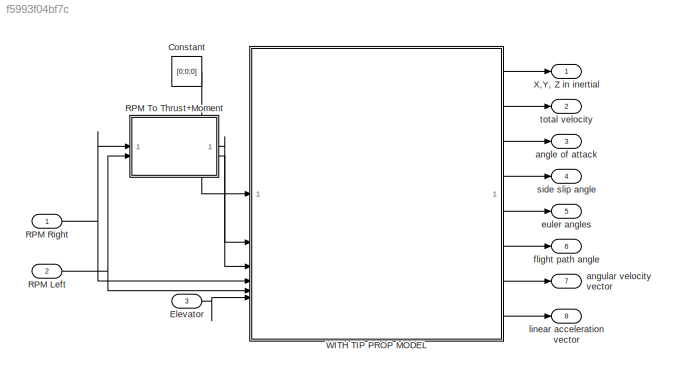
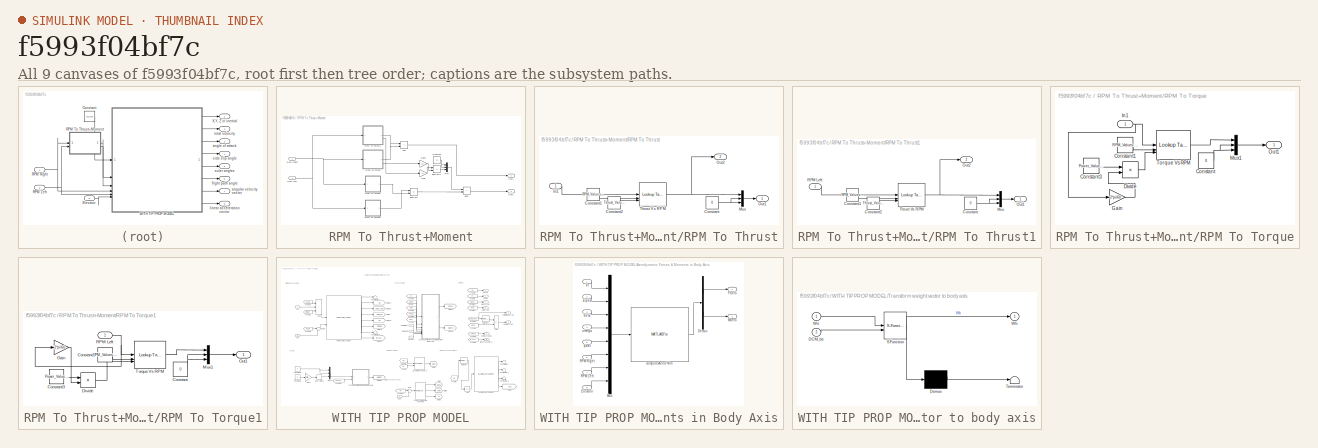
[diagram: thumbnail index - all 9 canvases of the model, root first then tree order]
MODEL slx_f5993f04bf7c
KIND model
CONFIG AbsTol = auto
CONFIG EnableMultiTasking = off
CONFIG FixedStep = auto
CONFIG MaxStep = auto
CONFIG MinStep = auto
CONFIG RelTol = 1e-3
CONFIG SampleTimeConstraint = Unconstrained
CONFIG SolverName = VariableStepAuto
CONFIG StartTime = 0.0
CONFIG StopTime = 100.0
BLOCK [Constant] Constant
  Value = [0;0;0]
BLOCK [Inport] Elevator
  Port = 3
BLOCK [Inport] RPM Left
  Port = 2
BLOCK [Inport] RPM Right
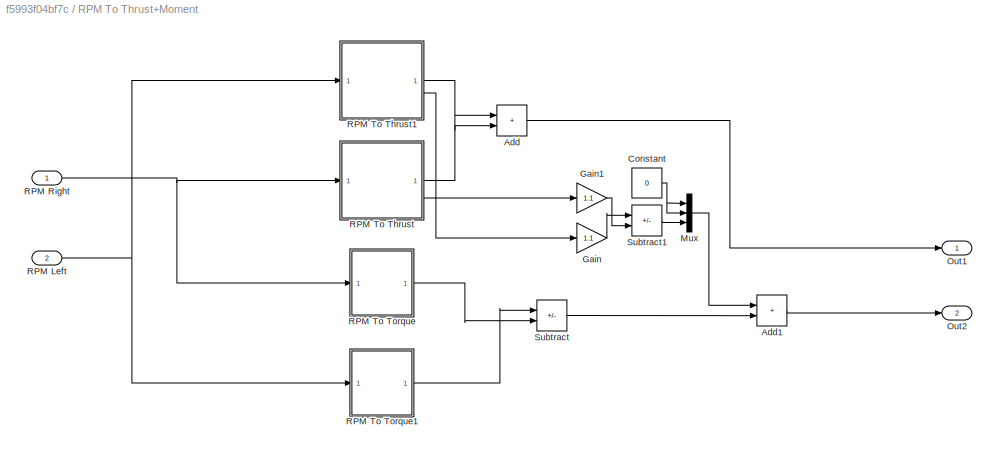
BLOCK [SubSystem] RPM To Thrust+Moment
BLOCK [Sum] RPM To Thrust+Moment/Add
  IconShape = rectangular
BLOCK [Sum] RPM To Thrust+Moment/Add1
  IconShape = rectangular
BLOCK [Constant] RPM To Thrust+Moment/Constant
  Value = 0
BLOCK [Gain] RPM To Thrust+Moment/Gain
  Gain = 1.1
BLOCK [Gain] RPM To Thrust+Moment/Gain1
  Gain = 1.1
BLOCK [Mux] RPM To Thrust+Moment/Mux
  DisplayOption = bar
  Inputs = 3
BLOCK [Outport] RPM To Thrust+Moment/Out1
BLOCK [Outport] RPM To Thrust+Moment/Out2
  Port = 2
BLOCK [Inport] RPM To Thrust+Moment/RPM Left
  Port = 2
BLOCK [Inport] RPM To Thrust+Moment/RPM Right
BLOCK [SubSystem] RPM To Thrust+Moment/RPM To Thrust
BLOCK [Constant] RPM To Thrust+Moment/RPM To Thrust/Constant
  Value = 0
BLOCK [Constant] RPM To Thrust+Moment/RPM To Thrust/Constant1
  Value = RPM_Values.RPM_Values
BLOCK [Constant] RPM To Thrust+Moment/RPM To Thrust/Constant2
  Value = Thrust_Values.Thrust_Values*2.25
BLOCK [Inport] RPM To Thrust+Moment/RPM To Thrust/In1
BLOCK [Mux] RPM To Thrust+Moment/RPM To Thrust/Mux
  DisplayOption = bar
  Inputs = 3
BLOCK [Outport] RPM To Thrust+Moment/RPM To Thrust/Out1
BLOCK [Outport] RPM To Thrust+Moment/RPM To Thrust/Out2
  Port = 2
BLOCK [Reference] RPM To Thrust+Moment/RPM To Thrust/Thrust Vs RPM  REF=simulink/Lookup
Tables/Lookup
Table
Dynamic
  SourceBlock = simulink/Lookup\nTables/Lookup\nTable\nDynamic
  SourceType = Lookup Table Dynamic
BLOCK [SubSystem] RPM To Thrust+Moment/RPM To Thrust1
BLOCK [Constant] RPM To Thrust+Moment/RPM To Thrust1/Constant
  Value = 0
BLOCK [Constant] RPM To Thrust+Moment/RPM To Thrust1/Constant1
  Value = RPM_Values.RPM_Values
BLOCK [Constant] RPM To Thrust+Moment/RPM To Thrust1/Constant2
  Value = Thrust_Values.Thrust_Values*2.25
BLOCK [Mux] RPM To Thrust+Moment/RPM To Thrust1/Mux
  DisplayOption = bar
  Inputs = 3
BLOCK [Outport] RPM To Thrust+Moment/RPM To Thrust1/Out1
BLOCK [Outport] RPM To Thrust+Moment/RPM To Thrust1/Out2
  Port = 2
BLOCK [Inport] RPM To Thrust+Moment/RPM To Thrust1/RPM Left
BLOCK [Reference] RPM To Thrust+Moment/RPM To Thrust1/Thrust Vs RPM  REF=simulink/Lookup
Tables/Lookup
Table
Dynamic
  SourceBlock = simulink/Lookup\nTables/Lookup\nTable\nDynamic
  SourceType = Lookup Table Dynamic
BLOCK [SubSystem] RPM To Thrust+Moment/RPM To Torque
BLOCK [Constant] RPM To Thrust+Moment/RPM To Torque/Constant
  Value = 0
BLOCK [Constant] RPM To Thrust+Moment/RPM To Torque/Constant1
  Value = RPM_Values.RPM_Values
BLOCK [Constant] RPM To Thrust+Moment/RPM To Torque/Constant3
  Value = Power_Values.Power_Values*1.5*1.5
BLOCK [Product] RPM To Thrust+Moment/RPM To Torque/Divide
  Inputs = */
BLOCK [Gain] RPM To Thrust+Moment/RPM To Torque/Gain
  Gain = 2*pi/60
BLOCK [Inport] RPM To Thrust+Moment/RPM To Torque/In1
BLOCK [Mux] RPM To Thrust+Moment/RPM To Torque/Mux1
  DisplayOption = bar
  Inputs = 3
BLOCK [Outport] RPM To Thrust+Moment/RPM To Torque/Out1
BLOCK [Reference] RPM To Thrust+Moment/RPM To Torque/Torque Vs RPM  REF=simulink/Lookup
Tables/Lookup
Table
Dynamic
  SourceBlock = simulink/Lookup\nTables/Lookup\nTable\nDynamic
  SourceType = Lookup Table Dynamic
BLOCK [SubSystem] RPM To Thrust+Moment/RPM To Torque1
BLOCK [Constant] RPM To Thrust+Moment/RPM To Torque1/Constant
  Value = 0
BLOCK [Constant] RPM To Thrust+Moment/RPM To Torque1/Constant1
  Value = RPM_Values.RPM_Values
BLOCK [Constant] RPM To Thrust+Moment/RPM To Torque1/Constant3
  Value = Power_Values.Power_Values*1.5*1.5
BLOCK [Product] RPM To Thrust+Moment/RPM To Torque1/Divide
  Inputs = */
BLOCK [Gain] RPM To Thrust+Moment/RPM To Torque1/Gain
  Gain = 2*pi/60
BLOCK [Mux] RPM To Thrust+Moment/RPM To Torque1/Mux1
  DisplayOption = bar
  Inputs = 3
BLOCK [Outport] RPM To Thrust+Moment/RPM To Torque1/Out1
BLOCK [Inport] RPM To Thrust+Moment/RPM To Torque1/RPM Left
BLOCK [Reference] RPM To Thrust+Moment/RPM To Torque1/Torque Vs RPM  REF=simulink/Lookup
Tables/Lookup
Table
Dynamic
  SourceBlock = simulink/Lookup\nTables/Lookup\nTable\nDynamic
  SourceType = Lookup Table Dynamic
BLOCK [Sum] RPM To Thrust+Moment/Subtract
  IconShape = rectangular
  Inputs = +-
BLOCK [Sum] RPM To Thrust+Moment/Subtract1
  IconShape = rectangular
  Inputs = +-
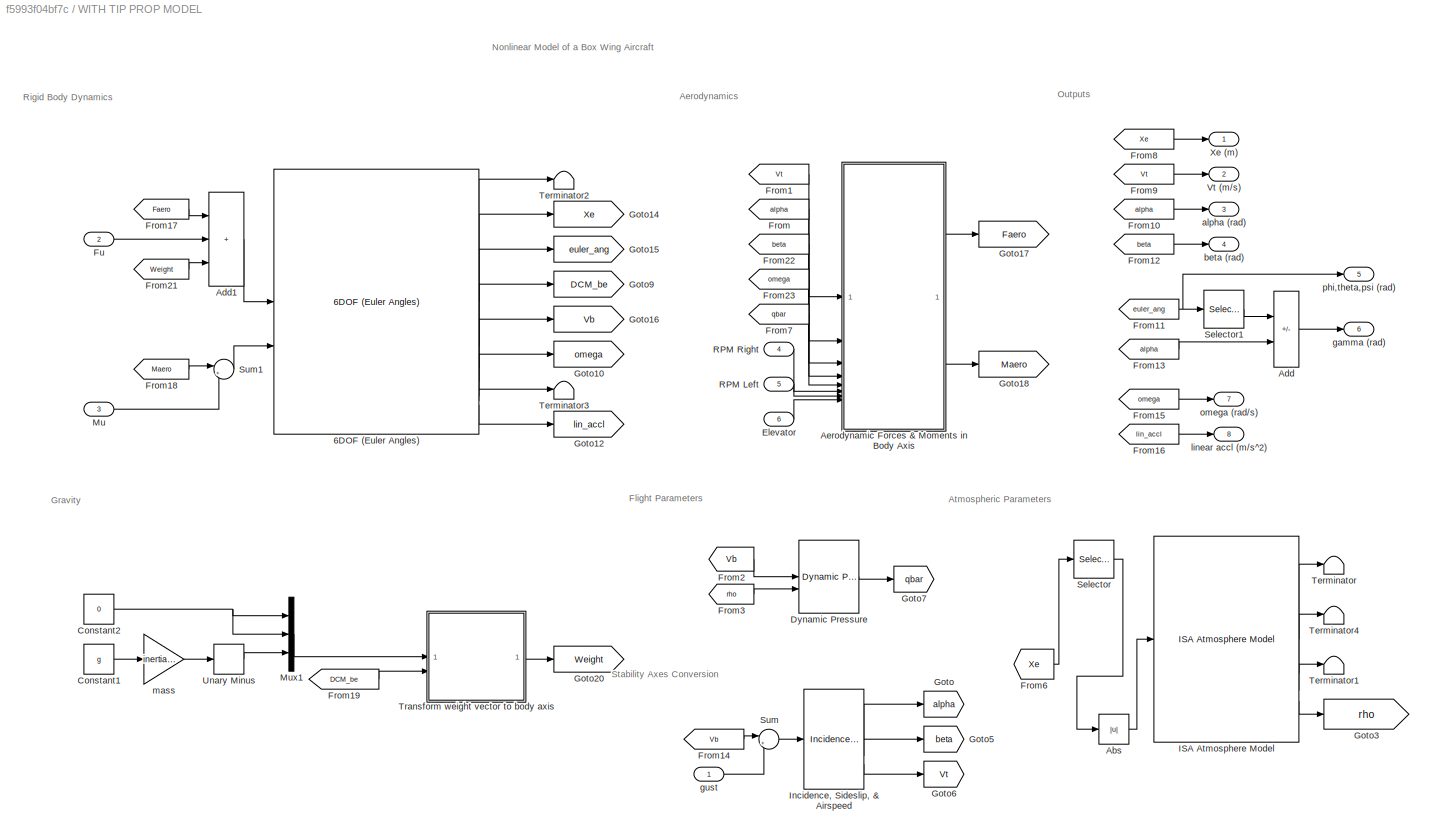
BLOCK [SubSystem] WITH TIP PROP MODEL
BLOCK [Reference] WITH TIP PROP MODEL/6DOF (Euler Angles)  REF=shared6dof/6DOF (Euler Angles)
  SourceBlock = shared6dof/6DOF (Euler Angles)
  SourceType = 6DOF EoM (Body Axis)
BLOCK [Abs] WITH TIP PROP MODEL/Abs
  SaturateOnIntegerOverflow = off
BLOCK [Sum] WITH TIP PROP MODEL/Add
  IconShape = rectangular
  Inputs = +-
BLOCK [Sum] WITH TIP PROP MODEL/Add1
  IconShape = rectangular
  Inputs = +++
BLOCK [SubSystem] WITH TIP PROP MODEL/Aerodynamic Forces & Moments in Body Axis
BLOCK [Demux] WITH TIP PROP MODEL/Aerodynamic Forces & Moments in Body Axis/Demux
  Outputs = 2
BLOCK [Inport] WITH TIP PROP MODEL/Aerodynamic Forces & Moments in Body Axis/Elevator 
  Port = 8
BLOCK [Outport] WITH TIP PROP MODEL/Aerodynamic Forces & Moments in Body Axis/Faero
  PortDimensions = 3
BLOCK [Outport] WITH TIP PROP MODEL/Aerodynamic Forces & Moments in Body Axis/Maero
  Port = 2
  PortDimensions = 3
BLOCK [Mux] WITH TIP PROP MODEL/Aerodynamic Forces & Moments in Body Axis/Mux
  DisplayOption = bar
  Inputs = 8
BLOCK [Inport] WITH TIP PROP MODEL/Aerodynamic Forces & Moments in Body Axis/RPM Left
  Port = 7
BLOCK [Inport] WITH TIP PROP MODEL/Aerodynamic Forces & Moments in Body Axis/RPM Right
  Port = 6
BLOCK [Inport] WITH TIP PROP MODEL/Aerodynamic Forces & Moments in Body Axis/Vt
BLOCK [Inport] WITH TIP PROP MODEL/Aerodynamic Forces & Moments in Body Axis/alpha
  Port = 2
BLOCK [Inport] WITH TIP PROP MODEL/Aerodynamic Forces & Moments in Body Axis/beta
  Port = 3
BLOCK [MATLABFcn] WITH TIP PROP MODEL/Aerodynamic Forces & Moments in Body Axis/computeAeroFM.m
  MATLABFcn = computeAeroFM
  OutputDimensions = 6
  OutputSignalType = real
BLOCK [Inport] WITH TIP PROP MODEL/Aerodynamic Forces & Moments in Body Axis/omega
  Port = 4
BLOCK [Inport] WITH TIP PROP MODEL/Aerodynamic Forces & Moments in Body Axis/qbar
  Port = 5
BLOCK [Constant] WITH TIP PROP MODEL/Constant1
  Value = g
BLOCK [Constant] WITH TIP PROP MODEL/Constant2
  Value = 0
BLOCK [Reference] WITH TIP PROP MODEL/Dynamic Pressure  REF=aerolibasang/Dynamic Pressure
  SourceBlock = aerolibasang/Dynamic Pressure
  SourceType = Dynamic Pressure
BLOCK [Inport] WITH TIP PROP MODEL/Elevator 
  Port = 6
BLOCK [From] WITH TIP PROP MODEL/From
  GotoTag = alpha
BLOCK [From] WITH TIP PROP MODEL/From1
  GotoTag = Vt
BLOCK [From] WITH TIP PROP MODEL/From10
  GotoTag = alpha
BLOCK [From] WITH TIP PROP MODEL/From11
  GotoTag = euler_ang
BLOCK [From] WITH TIP PROP MODEL/From12
  GotoTag = beta
BLOCK [From] WITH TIP PROP MODEL/From13
  GotoTag = alpha
BLOCK [From] WITH TIP PROP MODEL/From14
  GotoTag = Vb
BLOCK [From] WITH TIP PROP MODEL/From15
  GotoTag = omega
BLOCK [From] WITH TIP PROP MODEL/From16
  GotoTag = lin_accl
BLOCK [From] WITH TIP PROP MODEL/From17
  GotoTag = Faero
BLOCK [From] WITH TIP PROP MODEL/From18
  GotoTag = Maero
BLOCK [From] WITH TIP PROP MODEL/From19
  GotoTag = DCM_be
BLOCK [From] WITH TIP PROP MODEL/From2
  GotoTag = Vb
BLOCK [From] WITH TIP PROP MODEL/From21
  GotoTag = Weight
BLOCK [From] WITH TIP PROP MODEL/From22
  GotoTag = beta
BLOCK [From] WITH TIP PROP MODEL/From23
  GotoTag = omega
BLOCK [From] WITH TIP PROP MODEL/From3
  GotoTag = rho
BLOCK [From] WITH TIP PROP MODEL/From6
  GotoTag = Xe
BLOCK [From] WITH TIP PROP MODEL/From7
  GotoTag = qbar
BLOCK [From] WITH TIP PROP MODEL/From8
  GotoTag = Xe
BLOCK [From] WITH TIP PROP MODEL/From9
  GotoTag = Vt
BLOCK [Inport] WITH TIP PROP MODEL/Fu
  Port = 2
  PortDimensions = 3
BLOCK [Goto] WITH TIP PROP MODEL/Goto
  GotoTag = alpha
BLOCK [Goto] WITH TIP PROP MODEL/Goto10
  GotoTag = omega
BLOCK [Goto] WITH TIP PROP MODEL/Goto12
  GotoTag = lin_accl
BLOCK [Goto] WITH TIP PROP MODEL/Goto14
  GotoTag = Xe
BLOCK [Goto] WITH TIP PROP MODEL/Goto15
  GotoTag = euler_ang
BLOCK [Goto] WITH TIP PROP MODEL/Goto16
  GotoTag = Vb
BLOCK [Goto] WITH TIP PROP MODEL/Goto17
  GotoTag = Faero
BLOCK [Goto] WITH TIP PROP MODEL/Goto18
  GotoTag = Maero
BLOCK [Goto] WITH TIP PROP MODEL/Goto20
  GotoTag = Weight
BLOCK [Goto] WITH TIP PROP MODEL/Goto3
  GotoTag = rho
BLOCK [Goto] WITH TIP PROP MODEL/Goto5
  GotoTag = beta
BLOCK [Goto] WITH TIP PROP MODEL/Goto6
  GotoTag = Vt
BLOCK [Goto] WITH TIP PROP MODEL/Goto7
  GotoTag = qbar
BLOCK [Goto] WITH TIP PROP MODEL/Goto9
  GotoTag = DCM_be
BLOCK [Reference] WITH TIP PROP MODEL/ISA Atmosphere Model  REF=aerolibatmos2/ISA Atmosphere Model
  SourceBlock = aerolibatmos2/ISA Atmosphere Model
  SourceType = International Standard Atmosphere Model
BLOCK [Reference] WITH TIP PROP MODEL/Incidence, Sideslip, & Airspeed  REF=aerolibasang/Incidence, Sideslip,
& Airspeed
  SourceBlock = aerolibasang/Incidence, Sideslip,\n& Airspeed
  SourceType = Incidence,Sideslip,&Airspeed
BLOCK [Inport] WITH TIP PROP MODEL/Mu
  Port = 3
  PortDimensions = 3
BLOCK [Mux] WITH TIP PROP MODEL/Mux1
  DisplayOption = bar
  Inputs = 3
BLOCK [Inport] WITH TIP PROP MODEL/RPM Left
  Port = 5
BLOCK [Inport] WITH TIP PROP MODEL/RPM Right
  Port = 4
BLOCK [Selector] WITH TIP PROP MODEL/Selector
  IndexOptions = Index vector (dialog)
  Indices = 3
  InputPortWidth = 3
  OutputSizes = 1
BLOCK [Selector] WITH TIP PROP MODEL/Selector1
  IndexOptions = Index vector (dialog)
  Indices = 2
  InputPortWidth = 3
  OutputSizes = 1
BLOCK [Sum] WITH TIP PROP MODEL/Sum
  Inputs = |++
BLOCK [Sum] WITH TIP PROP MODEL/Sum1
  Inputs = |++
BLOCK [Terminator] WITH TIP PROP MODEL/Terminator
BLOCK [Terminator] WITH TIP PROP MODEL/Terminator1
BLOCK [Terminator] WITH TIP PROP MODEL/Terminator2
BLOCK [Terminator] WITH TIP PROP MODEL/Terminator3
BLOCK [Terminator] WITH TIP PROP MODEL/Terminator4
BLOCK [SubSystem] WITH TIP PROP MODEL/Transform weight vector to body axis
  ErrorFcn = Stateflow.Translate.translate
  PermitHierarchicalResolution = ExplicitOnly
  SFBlockType = MATLAB Function
  TreatAsAtomicUnit = on
BLOCK [Demux] WITH TIP PROP MODEL/Transform weight vector to body axis/ Demux 
  Outputs = 1
BLOCK [S-Function] WITH TIP PROP MODEL/Transform weight vector to body axis/ SFunction 
  EnableBusSupport = on
  FunctionName = sf_sfun
  PortCounts = [2 2]
  SFcnIsStateOwnerBlock = off
  SFunctionDeploymentMode = off
  Tag = Stateflow S-Function 1
BLOCK [Terminator] WITH TIP PROP MODEL/Transform weight vector to body axis/ Terminator 
BLOCK [Inport] WITH TIP PROP MODEL/Transform weight vector to body axis/DCM_be
  Port = 2
BLOCK [Outport] WITH TIP PROP MODEL/Transform weight vector to body axis/Wb
BLOCK [Inport] WITH TIP PROP MODEL/Transform weight vector to body axis/We
BLOCK [UnaryMinus] WITH TIP PROP MODEL/Unary Minus
BLOCK [Outport] WITH TIP PROP MODEL/Vt (m//s)
  Port = 2
BLOCK [Outport] WITH TIP PROP MODEL/Xe (m)
BLOCK [Outport] WITH TIP PROP MODEL/alpha (rad)
  Port = 3
BLOCK [Outport] WITH TIP PROP MODEL/beta (rad)
  Port = 4
BLOCK [Outport] WITH TIP PROP MODEL/gamma (rad)
  Port = 6
BLOCK [Inport] WITH TIP PROP MODEL/gust
  PortDimensions = 3
BLOCK [Outport] WITH TIP PROP MODEL/linear accl (m//s^2)
  Port = 8
BLOCK [Gain] WITH TIP PROP MODEL/mass
  Gain = inertiaGeom.mass
BLOCK [Outport] WITH TIP PROP MODEL/omega (rad//s)
  Port = 7
BLOCK [Outport] WITH TIP PROP MODEL/phi,theta,psi (rad)
  Port = 5
BLOCK [Outport] X,Y, Z in inertial
BLOCK [Outport] angle of attack
  Port = 3
BLOCK [Outport] angular velocity vector
  Port = 7
BLOCK [Outport] euler angles
  Port = 5
BLOCK [Outport] flight path angle
  Port = 6
BLOCK [Outport] linear acceleration vector
  Port = 8
BLOCK [Outport] side slip angle
  Port = 4
BLOCK [Outport] total velocity
  Port = 2
ANNOTATION WITH TIP PROP MODEL: Nonlinear Model of a Box Wing Aircraft
ANNOTATION WITH TIP PROP MODEL: Aerodynamics
ANNOTATION WITH TIP PROP MODEL: Atmospheric Parameters
ANNOTATION WITH TIP PROP MODEL: Flight Parameters
ANNOTATION WITH TIP PROP MODEL: Gravity
ANNOTATION WITH TIP PROP MODEL: Outputs
ANNOTATION WITH TIP PROP MODEL: Rigid Body Dynamics
ANNOTATION WITH TIP PROP MODEL: Stability Axes Conversion
LINE Constant:1 -> WITH TIP PROP MODEL:1
LINE Elevator:1 -> WITH TIP PROP MODEL:6
NET RPM Left:1 -> RPM To Thrust+Moment:2, WITH TIP PROP MODEL:5
NET RPM Right:1 -> RPM To Thrust+Moment:1, WITH TIP PROP MODEL:4
LINE RPM To Thrust+Moment/Add1:1 -> RPM To Thrust+Moment/Out2:1
LINE RPM To Thrust+Moment/Add:1 -> RPM To Thrust+Moment/Out1:1
NET RPM To Thrust+Moment/Constant:1 -> RPM To Thrust+Moment/Mux:1, RPM To Thrust+Moment/Mux:2
LINE RPM To Thrust+Moment/Gain1:1 -> RPM To Thrust+Moment/Subtract1:2
LINE RPM To Thrust+Moment/Gain:1 -> RPM To Thrust+Moment/Subtract1:1
LINE RPM To Thrust+Moment/Mux:1 -> RPM To Thrust+Moment/Add1:1
NET RPM To Thrust+Moment/RPM Left:1 -> RPM To Thrust+Moment/RPM To Thrust1:1, RPM To Thrust+Moment/RPM To Torque1:1
NET RPM To Thrust+Moment/RPM Right:1 -> RPM To Thrust+Moment/RPM To Thrust:1, RPM To Thrust+Moment/RPM To Torque:1
LINE RPM To Thrust+Moment/RPM To Thrust/Constant1:1 -> RPM To Thrust+Moment/RPM To Thrust/Thrust Vs RPM:2
LINE RPM To Thrust+Moment/RPM To Thrust/Constant2:1 -> RPM To Thrust+Moment/RPM To Thrust/Thrust Vs RPM:3
NET RPM To Thrust+Moment/RPM To Thrust/Constant:1 -> RPM To Thrust+Moment/RPM To Thrust/Mux:2, RPM To Thrust+Moment/RPM To Thrust/Mux:3
LINE RPM To Thrust+Moment/RPM To Thrust/In1:1 -> RPM To Thrust+Moment/RPM To Thrust/Thrust Vs RPM:1
LINE RPM To Thrust+Moment/RPM To Thrust/Mux:1 -> RPM To Thrust+Moment/RPM To Thrust/Out1:1
NET RPM To Thrust+Moment/RPM To Thrust/Thrust Vs RPM:1 -> RPM To Thrust+Moment/RPM To Thrust/Mux:1, RPM To Thrust+Moment/RPM To Thrust/Out2:1
LINE RPM To Thrust+Moment/RPM To Thrust1/Constant1:1 -> RPM To Thrust+Moment/RPM To Thrust1/Thrust Vs RPM:2
LINE RPM To Thrust+Moment/RPM To Thrust1/Constant2:1 -> RPM To Thrust+Moment/RPM To Thrust1/Thrust Vs RPM:3
NET RPM To Thrust+Moment/RPM To Thrust1/Constant:1 -> RPM To Thrust+Moment/RPM To Thrust1/Mux:2, RPM To Thrust+Moment/RPM To Thrust1/Mux:3
LINE RPM To Thrust+Moment/RPM To Thrust1/Mux:1 -> RPM To Thrust+Moment/RPM To Thrust1/Out1:1
LINE RPM To Thrust+Moment/RPM To Thrust1/RPM Left:1 -> RPM To Thrust+Moment/RPM To Thrust1/Thrust Vs RPM:1
NET RPM To Thrust+Moment/RPM To Thrust1/Thrust Vs RPM:1 -> RPM To Thrust+Moment/RPM To Thrust1/Mux:1, RPM To Thrust+Moment/RPM To Thrust1/Out2:1
LINE RPM To Thrust+Moment/RPM To Thrust1:1 -> RPM To Thrust+Moment/Add:1
LINE RPM To Thrust+Moment/RPM To Thrust1:2 -> RPM To Thrust+Moment/Gain:1
LINE RPM To Thrust+Moment/RPM To Thrust:1 -> RPM To Thrust+Moment/Add:2
LINE RPM To Thrust+Moment/RPM To Thrust:2 -> RPM To Thrust+Moment/Gain1:1
LINE RPM To Thrust+Moment/RPM To Torque/Constant1:1 -> RPM To Thrust+Moment/RPM To Torque/Torque Vs RPM:2
LINE RPM To Thrust+Moment/RPM To Torque/Constant3:1 -> RPM To Thrust+Moment/RPM To Torque/Divide:1
NET RPM To Thrust+Moment/RPM To Torque/Constant:1 -> RPM To Thrust+Moment/RPM To Torque/Mux1:2, RPM To Thrust+Moment/RPM To Torque/Mux1:3
LINE RPM To Thrust+Moment/RPM To Torque/Divide:1 -> RPM To Thrust+Moment/RPM To Torque/Torque Vs RPM:3
LINE RPM To Thrust+Moment/RPM To Torque/Gain:1 -> RPM To Thrust+Moment/RPM To Torque/Divide:2
NET RPM To Thrust+Moment/RPM To Torque/In1:1 -> RPM To Thrust+Moment/RPM To Torque/Gain:1, RPM To Thrust+Moment/RPM To Torque/Torque Vs RPM:1
LINE RPM To Thrust+Moment/RPM To Torque/Mux1:1 -> RPM To Thrust+Moment/RPM To Torque/Out1:1
LINE RPM To Thrust+Moment/RPM To Torque/Torque Vs RPM:1 -> RPM To Thrust+Moment/RPM To Torque/Mux1:1
LINE RPM To Thrust+Moment/RPM To Torque1/Constant1:1 -> RPM To Thrust+Moment/RPM To Torque1/Torque Vs RPM:2
LINE RPM To Thrust+Moment/RPM To Torque1/Constant3:1 -> RPM To Thrust+Moment/RPM To Torque1/Divide:1
NET RPM To Thrust+Moment/RPM To Torque1/Constant:1 -> RPM To Thrust+Moment/RPM To Torque1/Mux1:2, RPM To Thrust+Moment/RPM To Torque1/Mux1:3
LINE RPM To Thrust+Moment/RPM To Torque1/Divide:1 -> RPM To Thrust+Moment/RPM To Torque1/Torque Vs RPM:3
LINE RPM To Thrust+Moment/RPM To Torque1/Gain:1 -> RPM To Thrust+Moment/RPM To Torque1/Divide:2
LINE RPM To Thrust+Moment/RPM To Torque1/Mux1:1 -> RPM To Thrust+Moment/RPM To Torque1/Out1:1
NET RPM To Thrust+Moment/RPM To Torque1/RPM Left:1 -> RPM To Thrust+Moment/RPM To Torque1/Gain:1, RPM To Thrust+Moment/RPM To Torque1/Torque Vs RPM:1
LINE RPM To Thrust+Moment/RPM To Torque1/Torque Vs RPM:1 -> RPM To Thrust+Moment/RPM To Torque1/Mux1:1
LINE RPM To Thrust+Moment/RPM To Torque1:1 -> RPM To Thrust+Moment/Subtract:1
LINE RPM To Thrust+Moment/RPM To Torque:1 -> RPM To Thrust+Moment/Subtract:2
LINE RPM To Thrust+Moment/Subtract1:1 -> RPM To Thrust+Moment/Mux:3
LINE RPM To Thrust+Moment/Subtract:1 -> RPM To Thrust+Moment/Add1:2
LINE RPM To Thrust+Moment:1 -> WITH TIP PROP MODEL:2
LINE RPM To Thrust+Moment:2 -> WITH TIP PROP MODEL:3
LINE WITH TIP PROP MODEL/6DOF (Euler Angles):1 -> WITH TIP PROP MODEL/Terminator2:1
LINE WITH TIP PROP MODEL/6DOF (Euler Angles):2 -> WITH TIP PROP MODEL/Goto14:1
LINE WITH TIP PROP MODEL/6DOF (Euler Angles):3 -> WITH TIP PROP MODEL/Goto15:1
LINE WITH TIP PROP MODEL/6DOF (Euler Angles):4 -> WITH TIP PROP MODEL/Goto9:1
LINE WITH TIP PROP MODEL/6DOF (Euler Angles):5 -> WITH TIP PROP MODEL/Goto16:1
LINE WITH TIP PROP MODEL/6DOF (Euler Angles):6 -> WITH TIP PROP MODEL/Goto10:1
LINE WITH TIP PROP MODEL/6DOF (Euler Angles):7 -> WITH TIP PROP MODEL/Terminator3:1
LINE WITH TIP PROP MODEL/6DOF (Euler Angles):8 -> WITH TIP PROP MODEL/Goto12:1
LINE WITH TIP PROP MODEL/Abs:1 -> WITH TIP PROP MODEL/ISA Atmosphere Model:1
LINE WITH TIP PROP MODEL/Add1:1 -> WITH TIP PROP MODEL/6DOF (Euler Angles):1
LINE WITH TIP PROP MODEL/Add:1 -> WITH TIP PROP MODEL/gamma (rad):1
LINE WITH TIP PROP MODEL/Aerodynamic Forces & Moments in Body Axis/Demux:1 -> WITH TIP PROP MODEL/Aerodynamic Forces & Moments in Body Axis/Faero:1
LINE WITH TIP PROP MODEL/Aerodynamic Forces & Moments in Body Axis/Demux:2 -> WITH TIP PROP MODEL/Aerodynamic Forces & Moments in Body Axis/Maero:1
LINE WITH TIP PROP MODEL/Aerodynamic Forces & Moments in Body Axis/Elevator :1 -> WITH TIP PROP MODEL/Aerodynamic Forces & Moments in Body Axis/Mux:8
LINE WITH TIP PROP MODEL/Aerodynamic Forces & Moments in Body Axis/Mux:1 -> WITH TIP PROP MODEL/Aerodynamic Forces & Moments in Body Axis/computeAeroFM.m:1
LINE WITH TIP PROP MODEL/Aerodynamic Forces & Moments in Body Axis/RPM Left:1 -> WITH TIP PROP MODEL/Aerodynamic Forces & Moments in Body Axis/Mux:7
LINE WITH TIP PROP MODEL/Aerodynamic Forces & Moments in Body Axis/RPM Right:1 -> WITH TIP PROP MODEL/Aerodynamic Forces & Moments in Body Axis/Mux:6
LINE WITH TIP PROP MODEL/Aerodynamic Forces & Moments in Body Axis/Vt:1 -> WITH TIP PROP MODEL/Aerodynamic Forces & Moments in Body Axis/Mux:1
LINE WITH TIP PROP MODEL/Aerodynamic Forces & Moments in Body Axis/alpha:1 -> WITH TIP PROP MODEL/Aerodynamic Forces & Moments in Body Axis/Mux:2
LINE WITH TIP PROP MODEL/Aerodynamic Forces & Moments in Body Axis/beta:1 -> WITH TIP PROP MODEL/Aerodynamic Forces & Moments in Body Axis/Mux:3
LINE WITH TIP PROP MODEL/Aerodynamic Forces & Moments in Body Axis/computeAeroFM.m:1 -> WITH TIP PROP MODEL/Aerodynamic Forces & Moments in Body Axis/Demux:1
LINE WITH TIP PROP MODEL/Aerodynamic Forces & Moments in Body Axis/omega:1 -> WITH TIP PROP MODEL/Aerodynamic Forces & Moments in Body Axis/Mux:4
LINE WITH TIP PROP MODEL/Aerodynamic Forces & Moments in Body Axis/qbar:1 -> WITH TIP PROP MODEL/Aerodynamic Forces & Moments in Body Axis/Mux:5
LINE WITH TIP PROP MODEL/Aerodynamic Forces & Moments in Body Axis:1 -> WITH TIP PROP MODEL/Goto17:1
LINE WITH TIP PROP MODEL/Aerodynamic Forces & Moments in Body Axis:2 -> WITH TIP PROP MODEL/Goto18:1
LINE WITH TIP PROP MODEL/Constant1:1 -> WITH TIP PROP MODEL/mass:1
NET WITH TIP PROP MODEL/Constant2:1 -> WITH TIP PROP MODEL/Mux1:1, WITH TIP PROP MODEL/Mux1:2
LINE WITH TIP PROP MODEL/Dynamic Pressure:1 -> WITH TIP PROP MODEL/Goto7:1
LINE WITH TIP PROP MODEL/Elevator :1 -> WITH TIP PROP MODEL/Aerodynamic Forces & Moments in Body Axis:8
LINE WITH TIP PROP MODEL/From10:1 -> WITH TIP PROP MODEL/alpha (rad):1
NET WITH TIP PROP MODEL/From11:1 -> WITH TIP PROP MODEL/Selector1:1, WITH TIP PROP MODEL/phi,theta,psi (rad):1
LINE WITH TIP PROP MODEL/From12:1 -> WITH TIP PROP MODEL/beta (rad):1
LINE WITH TIP PROP MODEL/From13:1 -> WITH TIP PROP MODEL/Add:2
LINE WITH TIP PROP MODEL/From14:1 -> WITH TIP PROP MODEL/Sum:1
LINE WITH TIP PROP MODEL/From15:1 -> WITH TIP PROP MODEL/omega (rad//s):1
LINE WITH TIP PROP MODEL/From16:1 -> WITH TIP PROP MODEL/linear accl (m//s^2):1
LINE WITH TIP PROP MODEL/From17:1 -> WITH TIP PROP MODEL/Add1:1
LINE WITH TIP PROP MODEL/From18:1 -> WITH TIP PROP MODEL/Sum1:1
LINE WITH TIP PROP MODEL/From19:1 -> WITH TIP PROP MODEL/Transform weight vector to body axis:2
LINE WITH TIP PROP MODEL/From1:1 -> WITH TIP PROP MODEL/Aerodynamic Forces & Moments in Body Axis:1
LINE WITH TIP PROP MODEL/From21:1 -> WITH TIP PROP MODEL/Add1:3
LINE WITH TIP PROP MODEL/From22:1 -> WITH TIP PROP MODEL/Aerodynamic Forces & Moments in Body Axis:3
LINE WITH TIP PROP MODEL/From23:1 -> WITH TIP PROP MODEL/Aerodynamic Forces & Moments in Body Axis:4
LINE WITH TIP PROP MODEL/From2:1 -> WITH TIP PROP MODEL/Dynamic Pressure:1
LINE WITH TIP PROP MODEL/From3:1 -> WITH TIP PROP MODEL/Dynamic Pressure:2
LINE WITH TIP PROP MODEL/From6:1 -> WITH TIP PROP MODEL/Selector:1
LINE WITH TIP PROP MODEL/From7:1 -> WITH TIP PROP MODEL/Aerodynamic Forces & Moments in Body Axis:5
LINE WITH TIP PROP MODEL/From8:1 -> WITH TIP PROP MODEL/Xe (m):1
LINE WITH TIP PROP MODEL/From9:1 -> WITH TIP PROP MODEL/Vt (m//s):1
LINE WITH TIP PROP MODEL/From:1 -> WITH TIP PROP MODEL/Aerodynamic Forces & Moments in Body Axis:2
LINE WITH TIP PROP MODEL/Fu:1 -> WITH TIP PROP MODEL/Add1:2
LINE WITH TIP PROP MODEL/ISA Atmosphere Model:1 -> WITH TIP PROP MODEL/Terminator:1
LINE WITH TIP PROP MODEL/ISA Atmosphere Model:2 -> WITH TIP PROP MODEL/Terminator4:1
LINE WITH TIP PROP MODEL/ISA Atmosphere Model:3 -> WITH TIP PROP MODEL/Terminator1:1
LINE WITH TIP PROP MODEL/ISA Atmosphere Model:4 -> WITH TIP PROP MODEL/Goto3:1
LINE WITH TIP PROP MODEL/Incidence, Sideslip, & Airspeed:1 -> WITH TIP PROP MODEL/Goto:1
LINE WITH TIP PROP MODEL/Incidence, Sideslip, & Airspeed:2 -> WITH TIP PROP MODEL/Goto5:1
LINE WITH TIP PROP MODEL/Incidence, Sideslip, & Airspeed:3 -> WITH TIP PROP MODEL/Goto6:1
LINE WITH TIP PROP MODEL/Mu:1 -> WITH TIP PROP MODEL/Sum1:2
LINE WITH TIP PROP MODEL/Mux1:1 -> WITH TIP PROP MODEL/Transform weight vector to body axis:1
LINE WITH TIP PROP MODEL/RPM Left:1 -> WITH TIP PROP MODEL/Aerodynamic Forces & Moments in Body Axis:7
LINE WITH TIP PROP MODEL/RPM Right:1 -> WITH TIP PROP MODEL/Aerodynamic Forces & Moments in Body Axis:6
LINE WITH TIP PROP MODEL/Selector1:1 -> WITH TIP PROP MODEL/Add:1
LINE WITH TIP PROP MODEL/Selector:1 -> WITH TIP PROP MODEL/Abs:1
LINE WITH TIP PROP MODEL/Sum1:1 -> WITH TIP PROP MODEL/6DOF (Euler Angles):2
LINE WITH TIP PROP MODEL/Sum:1 -> WITH TIP PROP MODEL/Incidence, Sideslip, & Airspeed:1
LINE WITH TIP PROP MODEL/Transform weight vector to body axis:1 -> WITH TIP PROP MODEL/Goto20:1
LINE WITH TIP PROP MODEL/Unary Minus:1 -> WITH TIP PROP MODEL/Mux1:3
LINE WITH TIP PROP MODEL/gust:1 -> WITH TIP PROP MODEL/Sum:2
LINE WITH TIP PROP MODEL/mass:1 -> WITH TIP PROP MODEL/Unary Minus:1
LINE WITH TIP PROP MODEL:1 -> X,Y, Z in inertial:1
LINE WITH TIP PROP MODEL:2 -> total velocity:1
LINE WITH TIP PROP MODEL:3 -> angle of attack:1
LINE WITH TIP PROP MODEL:4 -> side slip angle:1
LINE WITH TIP PROP MODEL:5 -> euler angles:1
LINE WITH TIP PROP MODEL:6 -> flight path angle:1
LINE WITH TIP PROP MODEL:7 -> angular velocity vector:1
LINE WITH TIP PROP MODEL:8 -> linear acceleration vector:1
note: NET lines group one-source signal fan-out (src -> all destinations, sorted); 1:1 wires keep LINE
CHART WITH TIP PROP MODEL/Transform weight vector to body axis states=1 transitions=1
  STATE_LABEL 'eML_blk_kernel()'
  STATE_LABEL "SCRIPT:\nfunction Wb = fcn(We,DCM_be)\nWb = DCM_be'*We; % Weight in body coordinate system.\n"
CHART  states=0 transitions=0
